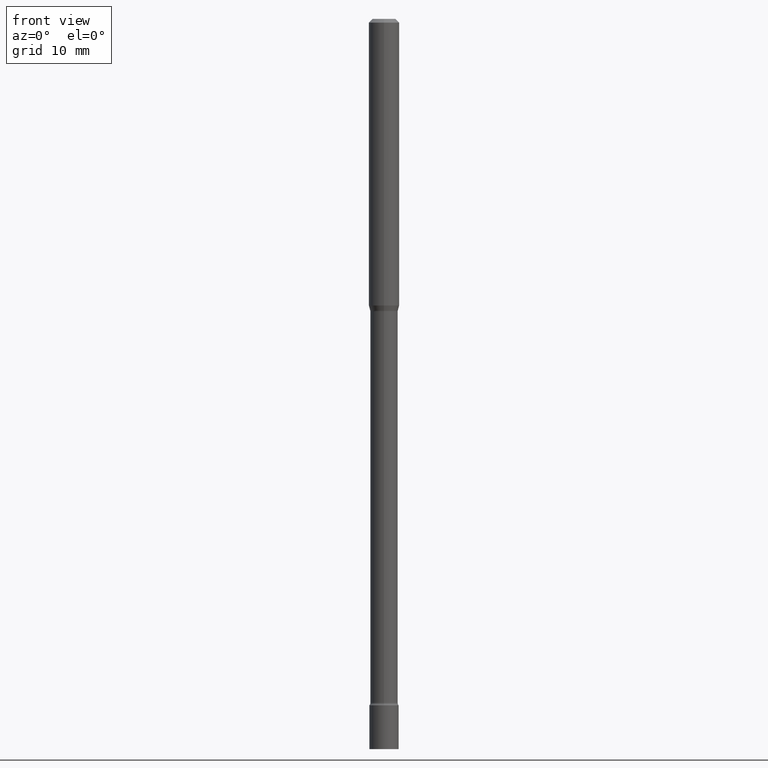
[diagram: clean part render]
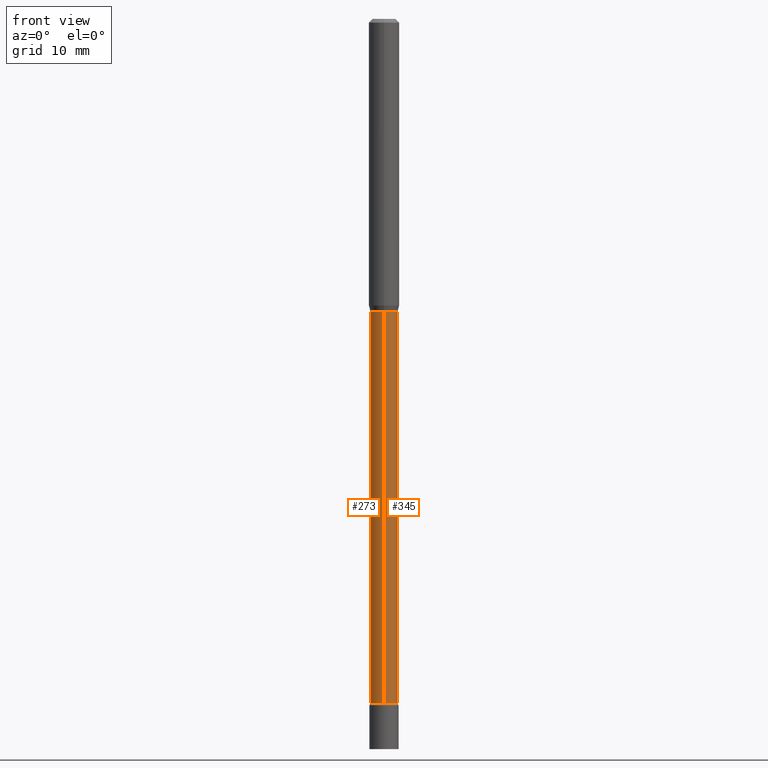
[diagram: same view with one multi-face feature highlighted, each face labeled with its STEP entity id]
A machine part, front view. The highlighted faces form ONE feature: a constant-radius fillet chain: 2 tangent blend faces with common blend radius 1.4326 mm. The faces share edges in the B-rep.
Their STEP definitions:
[1] entity #345 (Cylinder):
#7 = CARTESIAN_POINT ( 'NONE',  ( -3.938390950214759209E-16, -0.05640000000000419678, -1.201974787463810923 ) ) ;
#18 = CARTESIAN_POINT ( 'NONE',  ( 4.135358722124479375E-16, 0.05639999999999040919, -2.810251153914437250 ) ) ;
#43 = DIRECTION ( 'NONE',  ( -6.982962677686266711E-15, -1.000000000000000000, 0.000000000000000000 ) ) ;
#54 = CARTESIAN_POINT ( 'NONE',  ( -3.938390950215061442E-16, -0.05640000000000010283, 1.969148830714349761E-16 ) ) ;
#58 = ORIENTED_EDGE ( 'NONE', *, *, #201, .T. ) ;
#61 = VERTEX_POINT ( 'NONE', #292 ) ;
#79 = DIRECTION ( 'NONE',  ( -6.982962677686266711E-15, -1.000000000000000000, 3.491398636018344234E-15 ) ) ;
#80 = AXIS2_PLACEMENT_3D ( 'NONE', #96, #263, #127 ) ;
#96 = CARTESIAN_POINT ( 'NONE',  ( 2.939461263898527766E-29, -4.196573133479589427E-15, -1.201974787463811145 ) ) ;
#117 = ORIENTED_EDGE ( 'NONE', *, *, #291, .F. ) ;
#121 = CYLINDRICAL_SURFACE ( 'NONE', #343, 0.05640000000000010283 ) ;
#124 = CARTESIAN_POINT ( 'NONE',  ( 4.007461029687658664E-16, 0.05639999999999580071, -1.201974787463811145 ) ) ;
#125 = VECTOR ( 'NONE', #351, 39.37007874015748143 ) ;
#126 = DIRECTION ( 'NONE',  ( -2.445526557259029404E-29, 3.491398636018344234E-15, 1.000000000000000000 ) ) ;
#127 = DIRECTION ( 'NONE',  ( -6.982962677686265922E-15, -1.000000000000000000, 2.421851058212999609E-15 ) ) ;
#132 = EDGE_CURVE ( 'NONE', #407, #460, #259, .T. ) ;
#189 = VERTEX_POINT ( 'NONE', #18 ) ;
#201 = EDGE_CURVE ( 'NONE', #61, #189, #359, .T. ) ;
#214 = LINE ( 'NONE', #268, #125 ) ;
#221 = DIRECTION ( 'NONE',  ( -2.445526557259029684E-29, 3.491398636018344234E-15, 1.000000000000000000 ) ) ;
#227 = EDGE_CURVE ( 'NONE', #189, #460, #214, .T. ) ;
#228 = AXIS2_PLACEMENT_3D ( 'NONE', #417, #307, #43 ) ;
#254 = CARTESIAN_POINT ( 'NONE',  ( 0.000000000000000000, 0.000000000000000000, 0.000000000000000000 ) ) ;
#259 = CIRCLE ( 'NONE', #80, 0.05639999999999999181 ) ;
#263 = DIRECTION ( 'NONE',  ( -2.445526557259029404E-29, 3.491398636018344234E-15, 1.000000000000000000 ) ) ;
#268 = CARTESIAN_POINT ( 'NONE',  ( 4.007461029686971862E-16, 0.05640000000000010283, -1.969148830714349761E-16 ) ) ;
#291 = EDGE_CURVE ( 'NONE', #61, #407, #420, .T. ) ;
#292 = CARTESIAN_POINT ( 'NONE',  ( -3.938390950214382035E-16, -0.05640000000001002545, -2.810251153914437250 ) ) ;
#307 = DIRECTION ( 'NONE',  ( -2.445526557259029404E-29, 3.491398636018344234E-15, 1.000000000000000000 ) ) ;
#343 = AXIS2_PLACEMENT_3D ( 'NONE', #254, #126, #79 ) ;
#345 = ADVANCED_FACE ( 'NONE', ( #445 ), #121, .T. ) ;
#351 = DIRECTION ( 'NONE',  ( -2.445526557259029684E-29, 3.491398636018344234E-15, 1.000000000000000000 ) ) ;
#359 = CIRCLE ( 'NONE', #228, 0.05640000000000021385 ) ;
#383 = VECTOR ( 'NONE', #221, 39.37007874015748143 ) ;
#402 = EDGE_LOOP ( 'NONE', ( #58, #473, #501, #117 ) ) ;
#407 = VERTEX_POINT ( 'NONE', #7 ) ;
#417 = CARTESIAN_POINT ( 'NONE',  ( 6.872543829465588076E-29, -9.811707045645844346E-15, -2.810251153914437250 ) ) ;
#420 = LINE ( 'NONE', #54, #383 ) ;
#445 = FACE_OUTER_BOUND ( 'NONE', #402, .T. ) ;
#460 = VERTEX_POINT ( 'NONE', #124 ) ;
#473 = ORIENTED_EDGE ( 'NONE', *, *, #227, .T. ) ;
#501 = ORIENTED_EDGE ( 'NONE', *, *, #132, .F. ) ;
[2] entity #273 (Cylinder):
#7 = CARTESIAN_POINT ( 'NONE',  ( -3.938390950214759209E-16, -0.05640000000000419678, -1.201974787463810923 ) ) ;
#11 = CARTESIAN_POINT ( 'NONE',  ( 6.872543829465588076E-29, -9.811707045645844346E-15, -2.810251153914437250 ) ) ;
#18 = CARTESIAN_POINT ( 'NONE',  ( 4.135358722124479375E-16, 0.05639999999999040919, -2.810251153914437250 ) ) ;
#40 = CIRCLE ( 'NONE', #502, 0.05639999999999999181 ) ;
#52 = CARTESIAN_POINT ( 'NONE',  ( 0.000000000000000000, 0.000000000000000000, 0.000000000000000000 ) ) ;
#54 = CARTESIAN_POINT ( 'NONE',  ( -3.938390950215061442E-16, -0.05640000000000010283, 1.969148830714349761E-16 ) ) ;
#61 = VERTEX_POINT ( 'NONE', #292 ) ;
#71 = ORIENTED_EDGE ( 'NONE', *, *, #218, .T. ) ;
#124 = CARTESIAN_POINT ( 'NONE',  ( 4.007461029687658664E-16, 0.05639999999999580071, -1.201974787463811145 ) ) ;
#125 = VECTOR ( 'NONE', #351, 39.37007874015748143 ) ;
#128 = DIRECTION ( 'NONE',  ( -2.445526557259029404E-29, 3.491398636018344234E-15, 1.000000000000000000 ) ) ;
#153 = AXIS2_PLACEMENT_3D ( 'NONE', #52, #348, #219 ) ;
#155 = ORIENTED_EDGE ( 'NONE', *, *, #291, .T. ) ;
#164 = EDGE_CURVE ( 'NONE', #460, #407, #40, .T. ) ;
#189 = VERTEX_POINT ( 'NONE', #18 ) ;
#214 = LINE ( 'NONE', #268, #125 ) ;
#218 = EDGE_CURVE ( 'NONE', #189, #61, #414, .T. ) ;
#219 = DIRECTION ( 'NONE',  ( -6.982962677686266711E-15, -1.000000000000000000, 3.491398636018344234E-15 ) ) ;
#221 = DIRECTION ( 'NONE',  ( -2.445526557259029684E-29, 3.491398636018344234E-15, 1.000000000000000000 ) ) ;
#227 = EDGE_CURVE ( 'NONE', #189, #460, #214, .T. ) ;
#239 = ORIENTED_EDGE ( 'NONE', *, *, #227, .F. ) ;
#253 = DIRECTION ( 'NONE',  ( -6.982962677686265922E-15, -1.000000000000000000, 2.421851058212999609E-15 ) ) ;
#257 = CARTESIAN_POINT ( 'NONE',  ( 2.939461263898527766E-29, -4.196573133479589427E-15, -1.201974787463811145 ) ) ;
#268 = CARTESIAN_POINT ( 'NONE',  ( 4.007461029686971862E-16, 0.05640000000000010283, -1.969148830714349761E-16 ) ) ;
#273 = ADVANCED_FACE ( 'NONE', ( #310 ), #306, .T. ) ;
#291 = EDGE_CURVE ( 'NONE', #61, #407, #420, .T. ) ;
#292 = CARTESIAN_POINT ( 'NONE',  ( -3.938390950214382035E-16, -0.05640000000001002545, -2.810251153914437250 ) ) ;
#306 = CYLINDRICAL_SURFACE ( 'NONE', #153, 0.05640000000000010283 ) ;
#310 = FACE_OUTER_BOUND ( 'NONE', #322, .T. ) ;
#322 = EDGE_LOOP ( 'NONE', ( #239, #71, #155, #443 ) ) ;
#348 = DIRECTION ( 'NONE',  ( -2.445526557259029404E-29, 3.491398636018344234E-15, 1.000000000000000000 ) ) ;
#351 = DIRECTION ( 'NONE',  ( -2.445526557259029684E-29, 3.491398636018344234E-15, 1.000000000000000000 ) ) ;
#383 = VECTOR ( 'NONE', #221, 39.37007874015748143 ) ;
#405 = AXIS2_PLACEMENT_3D ( 'NONE', #11, #128, #424 ) ;
#407 = VERTEX_POINT ( 'NONE', #7 ) ;
#414 = CIRCLE ( 'NONE', #405, 0.05640000000000021385 ) ;
#420 = LINE ( 'NONE', #54, #383 ) ;
#424 = DIRECTION ( 'NONE',  ( -6.982962677686266711E-15, -1.000000000000000000, 0.000000000000000000 ) ) ;
#443 = ORIENTED_EDGE ( 'NONE', *, *, #164, .F. ) ;
#448 = DIRECTION ( 'NONE',  ( -2.445526557259029404E-29, 3.491398636018344234E-15, 1.000000000000000000 ) ) ;
#460 = VERTEX_POINT ( 'NONE', #124 ) ;
#502 = AXIS2_PLACEMENT_3D ( 'NONE', #257, #448, #253 ) ;